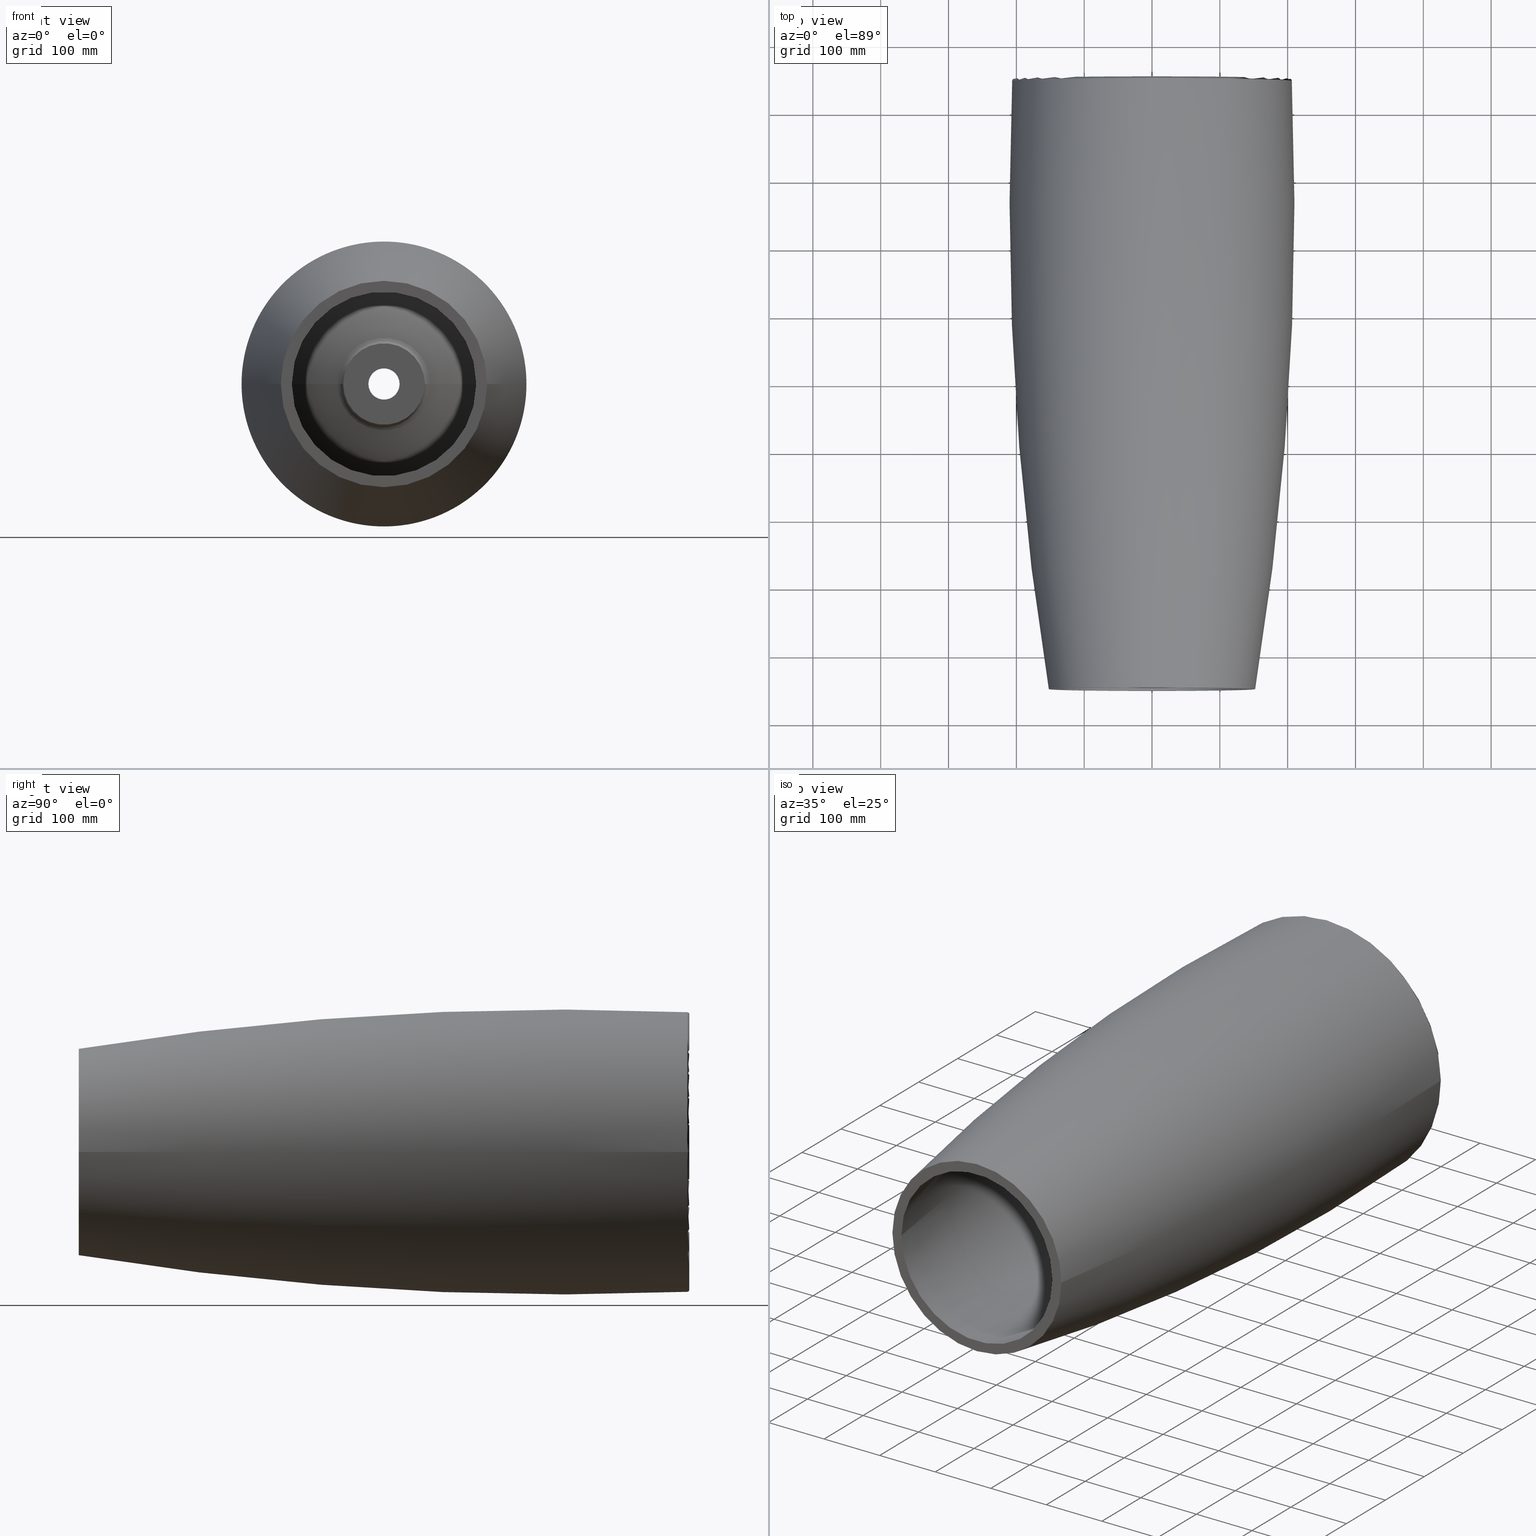
[diagram: canonical four-view strip — front | top / right | iso, engineering-drawing reading convention]
A machine part, canonical four-view strip (front | top / right | iso — engineering-drawing reading convention). The complete STEP part file that produces these views, byte-faithful:
ISO-10303-21;
HEADER;
FILE_DESCRIPTION (( 'STEP AP214' ),
    '1' );
FILE_NAME ('EOSA_ALT_D.STEP',
    '2022-02-15T11:32:47',
    ( '' ),
    ( '' ),
    'SwSTEP 2.0',
    'SolidWorks 2021',
    '' );
FILE_SCHEMA (( 'AUTOMOTIVE_DESIGN' ));
ENDSEC;

DATA;
#1 = ORIENTED_EDGE ( 'NONE', *, *, #117, .F. ) ;
#2 = EDGE_LOOP ( 'NONE', ( #618, #580, #92, #163 ) ) ;
#3 = DIRECTION ( 'NONE',  ( 1.000000000000000000, 0.000000000000000000, 1.224646799147352961E-16 ) ) ;
#4 = ORIENTED_EDGE ( 'NONE', *, *, #138, .F. ) ;
#5 = EDGE_CURVE ( 'NONE', #586, #551, #496, .T. ) ;
#6 = PRESENTATION_LAYER_ASSIGNMENT (  '', '', ( #198 ) ) ;
#7 = DIRECTION ( 'NONE',  ( -1.000000000000000000, 0.000000000000000000, 0.000000000000000000 ) ) ;
#8 = CARTESIAN_POINT ( 'NONE',  ( -70.00000000000008527, 708.1027297377410150, 0.000000000000000000 ) ) ;
#9 = ORIENTED_EDGE ( 'NONE', *, *, #57, .T. ) ;
#10 = DIRECTION ( 'NONE',  ( -1.246832498358330099E-16, 1.000000000000000000, -0.000000000000000000 ) ) ;
#11 =( LENGTH_UNIT ( ) NAMED_UNIT ( * ) SI_UNIT ( .MILLI., .METRE. ) );
#12 = ORIENTED_EDGE ( 'NONE', *, *, #204, .T. ) ;
#13 = FACE_OUTER_BOUND ( 'NONE', #319, .T. ) ;
#14 =( NAMED_UNIT ( * ) PLANE_ANGLE_UNIT ( ) SI_UNIT ( $, .RADIAN. ) );
#15 = EDGE_CURVE ( 'NONE', #197, #351, #412, .T. ) ;
#16 = AXIS2_PLACEMENT_3D ( 'NONE', #333, #531, #86 ) ;
#17 = AXIS2_PLACEMENT_3D ( 'NONE', #568, #417, #179 ) ;
#18 = CIRCLE ( 'NONE', #182, 68.24490714356687704 ) ;
#19 = ORIENTED_EDGE ( 'NONE', *, *, #492, .T. ) ;
#20 = DIRECTION ( 'NONE',  ( -1.000000000000000000, 0.000000000000000000, 0.000000000000000000 ) ) ;
#21 = DIRECTION ( 'NONE',  ( -1.246832498358330099E-16, 1.000000000000000000, -0.000000000000000000 ) ) ;
#22 = EDGE_LOOP ( 'NONE', ( #607, #458 ) ) ;
#23 = CARTESIAN_POINT ( 'NONE',  ( 22.99999999999989697, 720.0000000000000000, 2.816687638038911169E-15 ) ) ;
#24 = DIRECTION ( 'NONE',  ( -1.246832498358330099E-16, 1.000000000000000000, -0.000000000000000000 ) ) ;
#25 = ORIENTED_EDGE ( 'NONE', *, *, #160, .F. ) ;
#26 = EDGE_CURVE ( 'NONE', #48, #59, #51, .T. ) ;
#27 = DIRECTION ( 'NONE',  ( -1.000000000000000000, 0.000000000000000000, 0.000000000000000000 ) ) ;
#28 = CARTESIAN_POINT ( 'NONE',  ( -4200.202065928870979, 662.2085823914443381, -5.143764015811891808E-13 ) ) ;
#29 = ORIENTED_EDGE ( 'NONE', *, *, #385, .F. ) ;
#30 = DIRECTION ( 'NONE',  ( -1.246832498358330099E-16, 1.000000000000000000, -0.000000000000000000 ) ) ;
#31 = CARTESIAN_POINT ( 'NONE',  ( 6.234162491791648129E-15, -49.99999999999997868, 0.000000000000000000 ) ) ;
#32 = DIRECTION ( 'NONE',  ( -1.246832498358330099E-16, 1.000000000000000000, -0.000000000000000000 ) ) ;
#33 = CARTESIAN_POINT ( 'NONE',  ( -135.8988013690209016, -49.99999999999995026, 0.000000000000000000 ) ) ;
#34 = PRODUCT_DEFINITION_CONTEXT ( 'detailed design', #196, 'design' ) ;
#35 = EDGE_CURVE ( 'NONE', #226, #511, #294, .T. ) ;
#36 = DIRECTION ( 'NONE',  ( -1.246832498358330099E-16, 1.000000000000000000, 0.000000000000000000 ) ) ;
#37 = CARTESIAN_POINT ( 'NONE',  ( -8.326672684688674053E-14, 708.1027297377410150, 0.000000000000000000 ) ) ;
#38 = CIRCLE ( 'NONE', #393, 34.91753592594223221 ) ;
#39 = DIRECTION ( 'NONE',  ( -1.246832498358330099E-16, 1.000000000000000000, -0.000000000000000000 ) ) ;
#40 = AXIS2_PLACEMENT_3D ( 'NONE', #298, #249, #552 ) ;
#41 = ORIENTED_EDGE ( 'NONE', *, *, #204, .F. ) ;
#42 = TOROIDAL_SURFACE ( 'NONE', #115, -4200.202065928870979, 4410.202065928870979 ) ;
#43 = CARTESIAN_POINT ( 'NONE',  ( -9.426747841984855907E-14, 756.0556734282106390, 0.000000000000000000 ) ) ;
#44 = ORIENTED_EDGE ( 'NONE', *, *, #301, .T. ) ;
#45 = AXIS2_PLACEMENT_3D ( 'NONE', #184, #376, #167 ) ;
#46 =( NAMED_UNIT ( * ) PLANE_ANGLE_UNIT ( ) SI_UNIT ( $, .RADIAN. ) );
#47 = EDGE_CURVE ( 'NONE', #289, #392, #545, .T. ) ;
#48 = VERTEX_POINT ( 'NONE', #251 ) ;
#49 = DIRECTION ( 'NONE',  ( 0.000000000000000000, -0.000000000000000000, -1.000000000000000000 ) ) ;
#50 = ORIENTED_EDGE ( 'NONE', *, *, #306, .T. ) ;
#51 = CIRCLE ( 'NONE', #16, 174.8895041106751194 ) ;
#52 = AXIS2_PLACEMENT_3D ( 'NONE', #256, #262, #68 ) ;
#53 =( LENGTH_UNIT ( ) NAMED_UNIT ( * ) SI_UNIT ( .MILLI., .METRE. ) );
#54 = EDGE_CURVE ( 'NONE', #386, #590, #595, .T. ) ;
#55 = CARTESIAN_POINT ( 'NONE',  ( -8.977193988179976714E-14, 720.0000000000000000, 0.000000000000000000 ) ) ;
#56 = ORIENTED_EDGE ( 'NONE', *, *, #419, .T. ) ;
#57 = EDGE_CURVE ( 'NONE', #598, #338, #107, .T. ) ;
#58 = DIRECTION ( 'NONE',  ( -1.246832498358330099E-16, 1.000000000000000000, -0.000000000000000000 ) ) ;
#59 = VERTEX_POINT ( 'NONE', #353 ) ;
#60 = AXIS2_PLACEMENT_3D ( 'NONE', #577, #312, #309 ) ;
#61 = CONICAL_SURFACE ( 'NONE', #488, 34.91753592594223221, 0.8726646259971649888 ) ;
#62 = DIRECTION ( 'NONE',  ( -1.246832498358330099E-16, 1.000000000000000000, -0.000000000000000000 ) ) ;
#63 = LINE ( 'NONE', #261, #270 ) ;
#64 = ORIENTED_EDGE ( 'NONE', *, *, #345, .T. ) ;
#65 = CARTESIAN_POINT ( 'NONE',  ( -6.451553807694286215E-31, 708.0000000000000000, 0.000000000000000000 ) ) ;
#66 = ORIENTED_EDGE ( 'NONE', *, *, #409, .F. ) ;
#67 = ADVANCED_FACE ( 'NONE', ( #399 ), #346, .F. ) ;
#68 = DIRECTION ( 'NONE',  ( -1.000000000000000000, -1.246832498358330099E-16, 0.000000000000000000 ) ) ;
#69 = DIRECTION ( 'NONE',  ( 1.000000000000000000, 1.368506572352135864E-16, 0.000000000000000000 ) ) ;
#70 = ORIENTED_EDGE ( 'NONE', *, *, #334, .T. ) ;
#71 = FACE_OUTER_BOUND ( 'NONE', #339, .T. ) ;
#72 = DIRECTION ( 'NONE',  ( 1.000000000000000000, 0.000000000000000000, 1.224646799147353207E-16 ) ) ;
#73 = AXIS2_PLACEMENT_3D ( 'NONE', #464, #415, #237 ) ;
#74 = PRESENTATION_LAYER_ASSIGNMENT (  '', '', ( #395 ) ) ;
#75 = ORIENTED_EDGE ( 'NONE', *, *, #433, .T. ) ;
#76 = DIRECTION ( 'NONE',  ( -1.000000000000000000, 0.000000000000000000, 0.000000000000000000 ) ) ;
#77 = EDGE_CURVE ( 'NONE', #48, #135, #38, .T. ) ;
#78 = DIRECTION ( 'NONE',  ( 1.000000000000000000, 0.000000000000000000, 1.224646799147353454E-16 ) ) ;
#79 = FACE_BOUND ( 'NONE', #215, .T. ) ;
#80 = ORIENTED_EDGE ( 'NONE', *, *, #578, .F. ) ;
#81 = DIRECTION ( 'NONE',  ( -1.000000000000000000, -1.246832498358330099E-16, 0.000000000000000000 ) ) ;
#82 = AXIS2_PLACEMENT_3D ( 'NONE', #119, #223, #227 ) ;
#83 = TOROIDAL_SURFACE ( 'NONE', #246, 34.91753592594216826, 189.8895041106751194 ) ;
#84 = AXIS2_PLACEMENT_3D ( 'NONE', #181, #373, #137 ) ;
#85 = CARTESIAN_POINT ( 'NONE',  ( -9.187730895078067787E-14, 736.8857410418239624, 0.000000000000000000 ) ) ;
#86 = DIRECTION ( 'NONE',  ( -1.000000000000000000, 0.000000000000000000, 0.000000000000000000 ) ) ;
#87 = DIRECTION ( 'NONE',  ( -1.000000000000000000, 0.000000000000000000, 0.000000000000000000 ) ) ;
#88 = CARTESIAN_POINT ( 'NONE',  ( 34.91753592594206168, 904.8895041106750341, 4.276164860581778964E-15 ) ) ;
#89 = AXIS2_PLACEMENT_3D ( 'NONE', #341, #611, #20 ) ;
#90 = CIRCLE ( 'NONE', #451, 200.2874928100085583 ) ;
#91 = AXIS2_PLACEMENT_3D ( 'NONE', #147, #110, #400 ) ;
#92 = ORIENTED_EDGE ( 'NONE', *, *, #587, .T. ) ;
#93 = APPLICATION_PROTOCOL_DEFINITION ( 'draft international standard', 'automotive_design', 1998, #196 ) ;
#94 = AXIS2_PLACEMENT_3D ( 'NONE', #194, #388, #96 ) ;
#95 = ADVANCED_FACE ( 'NONE', ( #13 ), #104, .T. ) ;
#96 = DIRECTION ( 'NONE',  ( -1.000000000000000000, -1.246832498358330099E-16, 0.000000000000000000 ) ) ;
#97 = VERTEX_POINT ( 'NONE', #201 ) ;
#98 = ORIENTED_EDGE ( 'NONE', *, *, #419, .F. ) ;
#99 = DIRECTION ( 'NONE',  ( -1.000000000000000000, 0.000000000000000000, 0.000000000000000000 ) ) ;
#100 = SURFACE_STYLE_FILL_AREA ( #343 ) ;
#101 = APPLICATION_PROTOCOL_DEFINITION ( 'draft international standard', 'automotive_design', 1998, #572 ) ;
#102 = ORIENTED_EDGE ( 'NONE', *, *, #402, .T. ) ;
#103 = ADVANCED_FACE ( 'NONE', ( #555 ), #269, .T. ) ;
#104 = TOROIDAL_SURFACE ( 'NONE', #258, 203.1241974663284111, 3.000000000000093259 ) ;
#105 = CIRCLE ( 'NONE', #463, 22.99999999999998579 ) ;
#106 = ORIENTED_EDGE ( 'NONE', *, *, #138, .T. ) ;
#107 = LINE ( 'NONE', #213, #348 ) ;
#108 = ORIENTED_EDGE ( 'NONE', *, *, #171, .F. ) ;
#109 = CARTESIAN_POINT ( 'NONE',  ( -1.110223024625156540E-13, 846.9999999999997726, 0.000000000000000000 ) ) ;
#110 = DIRECTION ( 'NONE',  ( -1.246832498358330099E-16, 1.000000000000000000, -0.000000000000000000 ) ) ;
#111 = ORIENTED_EDGE ( 'NONE', *, *, #437, .F. ) ;
#112 = AXIS2_PLACEMENT_3D ( 'NONE', #342, #601, #453 ) ;
#113 = CIRCLE ( 'NONE', #475, 9.999999999999980460 ) ;
#114 = DIRECTION ( 'NONE',  ( -1.000000000000000000, 0.000000000000000000, 0.000000000000000000 ) ) ;
#115 = AXIS2_PLACEMENT_3D ( 'NONE', #592, #401, #337 ) ;
#116 = CARTESIAN_POINT ( 'NONE',  ( -8.827574088376975840E-14, 708.0000000000000000, 0.000000000000000000 ) ) ;
#117 = EDGE_CURVE ( 'NONE', #455, #219, #560, .T. ) ;
#118 = ORIENTED_EDGE ( 'NONE', *, *, #391, .T. ) ;
#119 = CARTESIAN_POINT ( 'NONE',  ( 69.99999999999992895, 708.1027297377410150, 8.572527594031472993E-15 ) ) ;
#120 = CYLINDRICAL_SURFACE ( 'NONE', #537, 22.99999999999999289 ) ;
#121 = CARTESIAN_POINT ( 'NONE',  ( -8.827574088376975840E-14, 708.0000000000000000, 0.000000000000000000 ) ) ;
#122 = FACE_OUTER_BOUND ( 'NONE', #193, .T. ) ;
#123 = ORIENTED_EDGE ( 'NONE', *, *, #5, .T. ) ;
#124 = ADVANCED_FACE ( 'NONE', ( #260 ), #136, .F. ) ;
#125 = DIRECTION ( 'NONE',  ( -1.224646799147353207E-16, -1.526929428187426516E-32, 1.000000000000000000 ) ) ;
#126 = AXIS2_PLACEMENT_3D ( 'NONE', #121, #514, #570 ) ;
#127 = DIRECTION ( 'NONE',  ( 1.000000000000000000, 0.000000000000000000, 1.224646799147356412E-16 ) ) ;
#128 = DIRECTION ( 'NONE',  ( 0.000000000000000000, 0.000000000000000000, 1.000000000000000000 ) ) ;
#129 = CARTESIAN_POINT ( 'NONE',  ( -68.24490714356696230, 717.9475074937544150, 0.000000000000000000 ) ) ;
#130 = DIRECTION ( 'NONE',  ( -1.246832498358330099E-16, 1.000000000000000000, -0.000000000000000000 ) ) ;
#131 = DIRECTION ( 'NONE',  ( -1.246832498358330099E-16, 1.000000000000000000, -0.000000000000000000 ) ) ;
#132 = ORIENTED_EDGE ( 'NONE', *, *, #484, .F. ) ;
#133 = ORIENTED_EDGE ( 'NONE', *, *, #257, .T. ) ;
#134 = DIRECTION ( 'NONE',  ( -1.246832498358330099E-16, 1.000000000000000000, -0.000000000000000000 ) ) ;
#135 = VERTEX_POINT ( 'NONE', #161 ) ;
#136 = TOROIDAL_SURFACE ( 'NONE', #112, 34.91753592594216826, 174.8895041106750909 ) ;
#137 = DIRECTION ( 'NONE',  ( -1.000000000000000000, 0.000000000000000000, 0.000000000000000000 ) ) ;
#138 = EDGE_CURVE ( 'NONE', #511, #172, #624, .T. ) ;
#139 = ADVANCED_FACE ( 'NONE', ( #291 ), #486, .T. ) ;
#140 = EDGE_LOOP ( 'NONE', ( #364, #243, #64, #357 ) ) ;
#141 =( NAMED_UNIT ( * ) SI_UNIT ( $, .STERADIAN. ) SOLID_ANGLE_UNIT ( ) );
#142 = AXIS2_PLACEMENT_3D ( 'NONE', #318, #515, #457 ) ;
#143 = VECTOR ( 'NONE', #530, 1000.000000000000000 ) ;
#144 = ORIENTED_EDGE ( 'NONE', *, *, #35, .F. ) ;
#145 = CARTESIAN_POINT ( 'NONE',  ( 8.880048061353697261E-14, -49.99999999999993605, 0.000000000000000000 ) ) ;
#146 = EDGE_LOOP ( 'NONE', ( #221, #9, #328, #550 ) ) ;
#147 = CARTESIAN_POINT ( 'NONE',  ( 0.000000000000000000, 662.2085823914449065, 0.000000000000000000 ) ) ;
#148 = ORIENTED_EDGE ( 'NONE', *, *, #224, .F. ) ;
#149 = CARTESIAN_POINT ( 'NONE',  ( 0.000000000000000000, 0.000000000000000000, 0.000000000000000000 ) ) ;
#150 = CARTESIAN_POINT ( 'NONE',  ( -60.00000000000007816, 708.0000000000000000, 0.000000000000000000 ) ) ;
#151 = ORIENTED_EDGE ( 'NONE', *, *, #15, .T. ) ;
#152 = AXIS2_PLACEMENT_3D ( 'NONE', #445, #302, #217 ) ;
#153 = CIRCLE ( 'NONE', #192, 23.00000000000000000 ) ;
#154 = AXIS2_PLACEMENT_3D ( 'NONE', #37, #565, #234 ) ;
#155 = DIRECTION ( 'NONE',  ( 1.000000000000000000, 1.021185445935654007E-16, 0.000000000000000000 ) ) ;
#156 = ORIENTED_EDGE ( 'NONE', *, *, #554, .F. ) ;
#157 = DIRECTION ( 'NONE',  ( -1.246832498358330099E-16, 1.000000000000000000, -0.000000000000000000 ) ) ;
#158 = DIRECTION ( 'NONE',  ( -1.000000000000000000, 0.000000000000000000, 0.000000000000000000 ) ) ;
#159 = ORIENTED_EDGE ( 'NONE', *, *, #340, .F. ) ;
#160 = EDGE_CURVE ( 'NONE', #392, #48, #165, .T. ) ;
#161 = CARTESIAN_POINT ( 'NONE',  ( 34.91753592594214695, 730.0000000000001137, 4.276164860581787642E-15 ) ) ;
#162 = DIRECTION ( 'NONE',  ( -1.246832498358330099E-16, 1.000000000000000000, -0.000000000000000000 ) ) ;
#163 = ORIENTED_EDGE ( 'NONE', *, *, #301, .F. ) ;
#164 = AXIS2_PLACEMENT_3D ( 'NONE', #371, #575, #558 ) ;
#165 = LINE ( 'NONE', #472, #320 ) ;
#166 = AXIS2_PLACEMENT_3D ( 'NONE', #225, #313, #576 ) ;
#167 = DIRECTION ( 'NONE',  ( -1.000000000000000000, -1.246832498358330099E-16, 0.000000000000000000 ) ) ;
#168 = ORIENTED_EDGE ( 'NONE', *, *, #224, .T. ) ;
#169 = DIRECTION ( 'NONE',  ( 1.000000000000000000, 0.000000000000000000, 1.224646799147352961E-16 ) ) ;
#170 = CARTESIAN_POINT ( 'NONE',  ( 0.000000000000000000, 0.000000000000000000, 0.000000000000000000 ) ) ;
#171 = EDGE_CURVE ( 'NONE', #598, #378, #404, .T. ) ;
#172 = VERTEX_POINT ( 'NONE', #567 ) ;
#173 = PRODUCT_DEFINITION_SHAPE ( 'NONE', 'NONE',  #619 ) ;
#174 = CARTESIAN_POINT ( 'NONE',  ( 203.1241974663282974, 846.9999999999997726, 2.487553982565139829E-14 ) ) ;
#175 = DIRECTION ( 'NONE',  ( -1.246832498358330099E-16, 1.000000000000000000, -0.000000000000000000 ) ) ;
#176 = DIRECTION ( 'NONE',  ( -1.000000000000000000, 0.000000000000000000, 0.000000000000000000 ) ) ;
#177 = AXIS2_PLACEMENT_3D ( 'NONE', #65, #36, #317 ) ;
#178 = CIRCLE ( 'NONE', #574, 59.99999999999999289 ) ;
#179 = DIRECTION ( 'NONE',  ( -1.000000000000000000, 0.000000000000000000, 0.000000000000000000 ) ) ;
#180 = AXIS2_PLACEMENT_3D ( 'NONE', #620, #377, #186 ) ;
#181 = CARTESIAN_POINT ( 'NONE',  ( -168.3690150244833887, 736.4608791583127640, 0.000000000000000000 ) ) ;
#182 = AXIS2_PLACEMENT_3D ( 'NONE', #616, #533, #87 ) ;
#183 = ORIENTED_EDGE ( 'NONE', *, *, #508, .T. ) ;
#184 = CARTESIAN_POINT ( 'NONE',  ( 0.000000000000000000, 662.2085823914449065, 0.000000000000000000 ) ) ;
#185 = ORIENTED_EDGE ( 'NONE', *, *, #599, .T. ) ;
#186 = DIRECTION ( 'NONE',  ( -1.000000000000000000, 0.000000000000000000, 0.000000000000000000 ) ) ;
#187 = EDGE_CURVE ( 'NONE', #351, #551, #336, .T. ) ;
#188 = PRODUCT ( 'EOSA_ALT_D', 'EOSA_ALT_D', '', ( #427 ) ) ;
#189 = CARTESIAN_POINT ( 'NONE',  ( 206.1215591921063606, 847.1257882539825914, 2.524261076998749186E-14 ) ) ;
#190 = CARTESIAN_POINT ( 'NONE',  ( 8.880048061353697261E-14, -49.99999999999993605, 0.000000000000000000 ) ) ;
#191 = CARTESIAN_POINT ( 'NONE',  ( 59.99999999999990763, 708.0000000000000000, 7.347880794884118356E-15 ) ) ;
#192 = AXIS2_PLACEMENT_3D ( 'NONE', #255, #450, #444 ) ;
#193 = EDGE_LOOP ( 'NONE', ( #468, #1, #56, #102 ) ) ;
#194 = CARTESIAN_POINT ( 'NONE',  ( 0.000000000000000000, 662.2085823914449065, 0.000000000000000000 ) ) ;
#195 = ADVANCED_FACE ( 'NONE', ( #277, #79 ), #459, .F. ) ;
#196 = APPLICATION_CONTEXT ( 'automotive_design' ) ;
#197 = VERTEX_POINT ( 'NONE', #232 ) ;
#198 = STYLED_ITEM ( 'NONE', ( #206 ), #389 ) ;
#199 = TOROIDAL_SURFACE ( 'NONE', #45, -4200.202065928870979, 4410.202065928870979 ) ;
#200 = ORIENTED_EDGE ( 'NONE', *, *, #216, .F. ) ;
#201 = CARTESIAN_POINT ( 'NONE',  ( 68.24490714356679177, 717.9475074937544150, 1.353775573317351336E-14 ) ) ;
#202 = FACE_OUTER_BOUND ( 'NONE', #480, .T. ) ;
#203 = EDGE_LOOP ( 'NONE', ( #111, #108 ) ) ;
#204 = EDGE_CURVE ( 'NONE', #135, #48, #573, .T. ) ;
#205 = DIRECTION ( 'NONE',  ( -1.246832498358330099E-16, 1.000000000000000000, -0.000000000000000000 ) ) ;
#206 = PRESENTATION_STYLE_ASSIGNMENT (( #356 ) ) ;
#207 = EDGE_LOOP ( 'NONE', ( #50, #19, #159, #513 ) ) ;
#208 = CYLINDRICAL_SURFACE ( 'NONE', #40, 59.99999999999998579 ) ;
#209 = ORIENTED_EDGE ( 'NONE', *, *, #187, .F. ) ;
#210 = AXIS2_PLACEMENT_3D ( 'NONE', #266, #523, #76 ) ;
#211 = VECTOR ( 'NONE', #602, 1000.000000000000000 ) ;
#212 = AXIS2_PLACEMENT_3D ( 'NONE', #174, #418, #127 ) ;
#213 = CARTESIAN_POINT ( 'NONE',  ( 59.99999999999998579, 7.480994990149979017E-15, 7.347880794884116778E-15 ) ) ;
#214 = FACE_OUTER_BOUND ( 'NONE', #146, .T. ) ;
#215 = EDGE_LOOP ( 'NONE', ( #304, #327 ) ) ;
#216 = EDGE_CURVE ( 'NONE', #197, #586, #283, .T. ) ;
#217 = DIRECTION ( 'NONE',  ( -1.000000000000000000, -1.246832498358330099E-16, 0.000000000000000000 ) ) ;
#218 = LINE ( 'NONE', #407, #211 ) ;
#219 = VERTEX_POINT ( 'NONE', #264 ) ;
#220 = DIRECTION ( 'NONE',  ( 0.7660444431189781245, 0.6427876096865391409, 9.381338752702732014E-17 ) ) ;
#221 = ORIENTED_EDGE ( 'NONE', *, *, #437, .T. ) ;
#222 =( GEOMETRIC_REPRESENTATION_CONTEXT ( 3 ) GLOBAL_UNCERTAINTY_ASSIGNED_CONTEXT ( ( #482 ) ) GLOBAL_UNIT_ASSIGNED_CONTEXT ( ( #556, #14, #252 ) ) REPRESENTATION_CONTEXT ( 'NONE', 'WORKASPACE' ) );
#223 = DIRECTION ( 'NONE',  ( -1.224646799147353207E-16, -1.526929428187426516E-32, 1.000000000000000000 ) ) ;
#224 = EDGE_CURVE ( 'NONE', #289, #135, #322, .T. ) ;
#225 = CARTESIAN_POINT ( 'NONE',  ( -8.326672684688674053E-14, 708.1027297377410150, 0.000000000000000000 ) ) ;
#226 = VERTEX_POINT ( 'NONE', #411 ) ;
#227 = DIRECTION ( 'NONE',  ( 1.000000000000000000, 0.000000000000000000, 1.224646799147354440E-16 ) ) ;
#228 = DIRECTION ( 'NONE',  ( 1.246832498358330099E-16, -1.000000000000000000, 0.000000000000000000 ) ) ;
#229 = ORIENTED_EDGE ( 'NONE', *, *, #535, .F. ) ;
#230 = CARTESIAN_POINT ( 'NONE',  ( -1.110223024625156540E-13, 904.8895041106750341, 0.000000000000000000 ) ) ;
#231 = AXIS2_PLACEMENT_3D ( 'NONE', #190, #379, #582 ) ;
#232 = CARTESIAN_POINT ( 'NONE',  ( 152.1123985246398433, -49.99999999999991473, 2.193550348318507100E-14 ) ) ;
#233 = AXIS2_PLACEMENT_3D ( 'NONE', #28, #473, #78 ) ;
#234 = DIRECTION ( 'NONE',  ( -1.000000000000000000, -1.246832498358330099E-16, 0.000000000000000000 ) ) ;
#235 = ORIENTED_EDGE ( 'NONE', *, *, #466, .T. ) ;
#236 = ADVANCED_FACE ( 'NONE', ( #71 ), #507, .F. ) ;
#237 = DIRECTION ( 'NONE',  ( -1.000000000000000000, 0.000000000000000000, 0.000000000000000000 ) ) ;
#238 = DIRECTION ( 'NONE',  ( -1.246832498358330099E-16, 1.000000000000000000, -0.000000000000000000 ) ) ;
#239 = PRODUCT_RELATED_PRODUCT_CATEGORY ( 'part', '', ( #188 ) ) ;
#240 = CARTESIAN_POINT ( 'NONE',  ( -203.1241974663284964, 846.9999999999997726, 0.000000000000000000 ) ) ;
#241 = EDGE_CURVE ( 'NONE', #374, #59, #90, .T. ) ;
#242 = CIRCLE ( 'NONE', #439, 59.99999999999998579 ) ;
#243 = ORIENTED_EDGE ( 'NONE', *, *, #535, .T. ) ;
#244 = DIRECTION ( 'NONE',  ( -1.000000000000000000, 0.000000000000000000, 0.000000000000000000 ) ) ;
#245 = AXIS2_PLACEMENT_3D ( 'NONE', #145, #175, #483 ) ;
#246 = AXIS2_PLACEMENT_3D ( 'NONE', #230, #420, #612 ) ;
#247 = EDGE_LOOP ( 'NONE', ( #501, #557 ) ) ;
#248 = EDGE_CURVE ( 'NONE', #97, #338, #613, .T. ) ;
#249 = DIRECTION ( 'NONE',  ( -1.246832498358330099E-16, 1.000000000000000000, -0.000000000000000000 ) ) ;
#250 = EDGE_LOOP ( 'NONE', ( #144, #358, #621, #4 ) ) ;
#251 = CARTESIAN_POINT ( 'NONE',  ( -34.91753592594231748, 730.0000000000001137, 0.000000000000000000 ) ) ;
#252 =( NAMED_UNIT ( * ) SI_UNIT ( $, .STERADIAN. ) SOLID_ANGLE_UNIT ( ) );
#253 = ORIENTED_EDGE ( 'NONE', *, *, #402, .F. ) ;
#254 = CARTESIAN_POINT ( 'NONE',  ( -9.101877238015810986E-14, 730.0000000000001137, 0.000000000000000000 ) ) ;
#255 = CARTESIAN_POINT ( 'NONE',  ( -8.827574088376975840E-14, 708.0000000000000000, 0.000000000000000000 ) ) ;
#256 = CARTESIAN_POINT ( 'NONE',  ( 0.000000000000000000, 0.000000000000000000, 0.000000000000000000 ) ) ;
#257 = EDGE_CURVE ( 'NONE', #622, #386, #349, .T. ) ;
#258 = AXIS2_PLACEMENT_3D ( 'NONE', #109, #559, #503 ) ;
#259 = AXIS2_PLACEMENT_3D ( 'NONE', #88, #293, #3 ) ;
#260 = FACE_OUTER_BOUND ( 'NONE', #493, .T. ) ;
#261 = CARTESIAN_POINT ( 'NONE',  ( -22.99999999999999289, -2.867714746224158439E-15, 0.000000000000000000 ) ) ;
#262 = DIRECTION ( 'NONE',  ( -1.246832498358330099E-16, 1.000000000000000000, -0.000000000000000000 ) ) ;
#263 = ORIENTED_EDGE ( 'NONE', *, *, #241, .F. ) ;
#264 = CARTESIAN_POINT ( 'NONE',  ( 22.99999999999991118, 708.0000000000000000, 2.816687638038912746E-15 ) ) ;
#265 = EDGE_LOOP ( 'NONE', ( #542, #156, #287, #569 ) ) ;
#266 = CARTESIAN_POINT ( 'NONE',  ( 4200.202065928870979, 662.2085823914454750, 0.000000000000000000 ) ) ;
#267 = CARTESIAN_POINT ( 'NONE',  ( -60.00000000000007105, 708.1027297377410150, 0.000000000000000000 ) ) ;
#268 = ORIENTED_EDGE ( 'NONE', *, *, #54, .T. ) ;
#269 = TOROIDAL_SURFACE ( 'NONE', #152, 34.91753592594216826, 189.8895041106751194 ) ;
#270 = VECTOR ( 'NONE', #21, 1000.000000000000000 ) ;
#271 = PRODUCT_DEFINITION_FORMATION_WITH_SPECIFIED_SOURCE ( 'ANY', '', #188, .NOT_KNOWN. ) ;
#272 = FACE_BOUND ( 'NONE', #22, .T. ) ;
#273 = ORIENTED_EDGE ( 'NONE', *, *, #47, .T. ) ;
#274 = FACE_OUTER_BOUND ( 'NONE', #485, .T. ) ;
#275 = UNCERTAINTY_MEASURE_WITH_UNIT (LENGTH_MEASURE( 1.000000000000000082E-05 ), #53, 'distance_accuracy_value', 'NONE');
#276 = DIRECTION ( 'NONE',  ( -1.000000000000000000, -1.246832498358330099E-16, 0.000000000000000000 ) ) ;
#277 = FACE_OUTER_BOUND ( 'NONE', #203, .T. ) ;
#278 = DIRECTION ( 'NONE',  ( -1.000000000000000000, -1.246832498358330099E-16, 0.000000000000000000 ) ) ;
#279 = CARTESIAN_POINT ( 'NONE',  ( -8.326672684688674053E-14, 736.4608791583127640, 0.000000000000000000 ) ) ;
#280 = ADVANCED_FACE ( 'NONE', ( #274 ), #547, .F. ) ;
#281 = ORIENTED_EDGE ( 'NONE', *, *, #77, .T. ) ;
#282 = CARTESIAN_POINT ( 'NONE',  ( 8.880048061353697261E-14, -49.99999999999993605, 0.000000000000000000 ) ) ;
#283 = CIRCLE ( 'NONE', #60, 4410.202065928870979 ) ;
#284 = TOROIDAL_SURFACE ( 'NONE', #625, 34.91753592594216826, 174.8895041106750909 ) ;
#285 = DIRECTION ( 'NONE',  ( 0.000000000000000000, -0.000000000000000000, -1.000000000000000000 ) ) ;
#286 = ADVANCED_FACE ( 'NONE', ( #522 ), #83, .T. ) ;
#287 = ORIENTED_EDGE ( 'NONE', *, *, #578, .T. ) ;
#288 = CIRCLE ( 'NONE', #17, 200.2874928100085583 ) ;
#289 = VERTEX_POINT ( 'NONE', #23 ) ;
#290 = ORIENTED_EDGE ( 'NONE', *, *, #385, .T. ) ;
#291 = FACE_OUTER_BOUND ( 'NONE', #516, .T. ) ;
#292 = FILL_AREA_STYLE_COLOUR ( '', #321 ) ;
#293 = DIRECTION ( 'NONE',  ( -1.224646799147353207E-16, -1.526929428187426516E-32, 1.000000000000000000 ) ) ;
#294 = CIRCLE ( 'NONE', #245, 135.8988013690209868 ) ;
#295 = CIRCLE ( 'NONE', #164, 68.24490714356687704 ) ;
#296 = CARTESIAN_POINT ( 'NONE',  ( -1.110223024625156540E-13, 904.8895041106750341, 0.000000000000000000 ) ) ;
#297 =( GEOMETRIC_REPRESENTATION_CONTEXT ( 3 ) GLOBAL_UNCERTAINTY_ASSIGNED_CONTEXT ( ( #589 ) ) GLOBAL_UNIT_ASSIGNED_CONTEXT ( ( #11, #46, #141 ) ) REPRESENTATION_CONTEXT ( 'NONE', 'WORKASPACE' ) );
#298 = CARTESIAN_POINT ( 'NONE',  ( 0.000000000000000000, 0.000000000000000000, 0.000000000000000000 ) ) ;
#299 = ORIENTED_EDGE ( 'NONE', *, *, #241, .T. ) ;
#300 = EDGE_LOOP ( 'NONE', ( #132, #603, #106, #566 ) ) ;
#301 = EDGE_CURVE ( 'NONE', #338, #491, #242, .T. ) ;
#302 = DIRECTION ( 'NONE',  ( -1.246832498358330099E-16, 1.000000000000000000, -0.000000000000000000 ) ) ;
#303 = EDGE_LOOP ( 'NONE', ( #229, #529, #44, #29 ) ) ;
#304 = ORIENTED_EDGE ( 'NONE', *, *, #117, .T. ) ;
#305 = CARTESIAN_POINT ( 'NONE',  ( -8.326672684688674053E-14, 736.4608791583127640, 0.000000000000000000 ) ) ;
#306 = EDGE_CURVE ( 'NONE', #314, #97, #295, .T. ) ;
#307 = EDGE_LOOP ( 'NONE', ( #41, #413, #299, #311 ) ) ;
#308 = COLOUR_RGB ( '',1.000000000000000000, 1.000000000000000000, 1.000000000000000000 ) ;
#309 = DIRECTION ( 'NONE',  ( 1.000000000000000000, 0.000000000000000000, 1.224646799147353454E-16 ) ) ;
#310 = DIRECTION ( 'NONE',  ( -1.246832498358330099E-16, 1.000000000000000000, -0.000000000000000000 ) ) ;
#311 = ORIENTED_EDGE ( 'NONE', *, *, #26, .F. ) ;
#312 = DIRECTION ( 'NONE',  ( -1.224646799147353207E-16, -1.526929428187426516E-32, 1.000000000000000000 ) ) ;
#313 = DIRECTION ( 'NONE',  ( -1.246832498358330099E-16, 1.000000000000000000, -0.000000000000000000 ) ) ;
#314 = VERTEX_POINT ( 'NONE', #129 ) ;
#315 = ADVANCED_FACE ( 'NONE', ( #324 ), #284, .F. ) ;
#316 = DIRECTION ( 'NONE',  ( -1.246832498358330099E-16, 1.000000000000000000, -0.000000000000000000 ) ) ;
#317 = DIRECTION ( 'NONE',  ( -1.000000000000000000, -1.246832498358330099E-16, 0.000000000000000000 ) ) ;
#318 = CARTESIAN_POINT ( 'NONE',  ( -9.187730895078067787E-14, 736.8857410418239624, 0.000000000000000000 ) ) ;
#319 = EDGE_LOOP ( 'NONE', ( #532, #123, #185, #263 ) ) ;
#320 = VECTOR ( 'NONE', #325, 1000.000000000000000 ) ;
#321 = COLOUR_RGB ( '',1.000000000000000000, 1.000000000000000000, 1.000000000000000000 ) ;
#322 = LINE ( 'NONE', #456, #422 ) ;
#323 = AXIS2_PLACEMENT_3D ( 'NONE', #31, #228, #329 ) ;
#324 = FACE_OUTER_BOUND ( 'NONE', #307, .T. ) ;
#325 = DIRECTION ( 'NONE',  ( -0.7660444431189782355, 0.6427876096865390299, 0.000000000000000000 ) ) ;
#326 = ADVANCED_FACE ( 'NONE', ( #398 ), #479, .T. ) ;
#327 = ORIENTED_EDGE ( 'NONE', *, *, #409, .T. ) ;
#328 = ORIENTED_EDGE ( 'NONE', *, *, #334, .F. ) ;
#329 = DIRECTION ( 'NONE',  ( 1.000000000000000000, 1.246832498358330099E-16, 0.000000000000000000 ) ) ;
#330 = FACE_OUTER_BOUND ( 'NONE', #250, .T. ) ;
#331 = CIRCLE ( 'NONE', #614, 135.8988013690209868 ) ;
#332 = TOROIDAL_SURFACE ( 'NONE', #94, -4200.202065928870979, 4394.202065928870979 ) ;
#333 = CARTESIAN_POINT ( 'NONE',  ( -34.91753592594228195, 904.8895041106750341, 0.000000000000000000 ) ) ;
#334 = EDGE_CURVE ( 'NONE', #491, #338, #394, .T. ) ;
#335 = DIRECTION ( 'NONE',  ( -1.000000000000000000, 0.000000000000000000, 0.000000000000000000 ) ) ;
#336 = CIRCLE ( 'NONE', #210, 4410.202065928870979 ) ;
#337 = DIRECTION ( 'NONE',  ( -1.000000000000000000, -1.246832498358330099E-16, 0.000000000000000000 ) ) ;
#338 = VERTEX_POINT ( 'NONE', #579 ) ;
#339 = EDGE_LOOP ( 'NONE', ( #148, #253, #553, #281 ) ) ;
#340 = EDGE_CURVE ( 'NONE', #590, #386, #432, .T. ) ;
#341 = CARTESIAN_POINT ( 'NONE',  ( -8.977193988179976714E-14, 720.0000000000000000, 0.000000000000000000 ) ) ;
#342 = CARTESIAN_POINT ( 'NONE',  ( -1.110223024625156540E-13, 904.8895041106750341, 0.000000000000000000 ) ) ;
#343 = FILL_AREA_STYLE ('',( #292 ) ) ;
#344 = SURFACE_SIDE_STYLE ('',( #549 ) ) ;
#345 = EDGE_CURVE ( 'NONE', #314, #590, #606, .T. ) ;
#346 = CYLINDRICAL_SURFACE ( 'NONE', #431, 22.99999999999999289 ) ;
#347 = FILL_AREA_STYLE ('',( #397 ) ) ;
#348 = VECTOR ( 'NONE', #205, 1000.000000000000000 ) ;
#349 = CIRCLE ( 'NONE', #498, 25.00000000000032685 ) ;
#350 = AXIS2_PLACEMENT_3D ( 'NONE', #240, #285, #335 ) ;
#351 = VERTEX_POINT ( 'NONE', #477 ) ;
#352 = ADVANCED_FACE ( 'NONE', ( #330 ), #414, .F. ) ;
#353 = CARTESIAN_POINT ( 'NONE',  ( -200.2874928100086720, 847.9762718334632154, 0.000000000000000000 ) ) ;
#354 = CARTESIAN_POINT ( 'NONE',  ( 152.8434220399825847, 756.0556734282106390, 2.119917656975765769E-14 ) ) ;
#355 = ORIENTED_EDGE ( 'NONE', *, *, #306, .F. ) ;
#356 = SURFACE_STYLE_USAGE ( .BOTH. , #406 ) ;
#357 = ORIENTED_EDGE ( 'NONE', *, *, #54, .F. ) ;
#358 = ORIENTED_EDGE ( 'NONE', *, *, #484, .T. ) ;
#359 = AXIS2_PLACEMENT_3D ( 'NONE', #305, #316, #367 ) ;
#360 = MECHANICAL_DESIGN_GEOMETRIC_PRESENTATION_REPRESENTATION (  '', ( #395 ), #528 ) ;
#361 = CARTESIAN_POINT ( 'NONE',  ( -1.057284373558699393E-13, 847.9762718334632154, 0.000000000000000000 ) ) ;
#362 = CARTESIAN_POINT ( 'NONE',  ( -23.00000000000008527, 708.0000000000000000, 0.000000000000000000 ) ) ;
#363 = EDGE_CURVE ( 'NONE', #511, #226, #331, .T. ) ;
#364 = ORIENTED_EDGE ( 'NONE', *, *, #492, .F. ) ;
#365 = DIRECTION ( 'NONE',  ( -1.246832498358330099E-16, 1.000000000000000000, -0.000000000000000000 ) ) ;
#366 = ORIENTED_EDGE ( 'NONE', *, *, #77, .F. ) ;
#367 = DIRECTION ( 'NONE',  ( -1.000000000000000000, -1.246832498358330099E-16, 0.000000000000000000 ) ) ;
#368 = FACE_OUTER_BOUND ( 'NONE', #520, .T. ) ;
#369 = ADVANCED_FACE ( 'NONE', ( #214 ), #208, .T. ) ;
#370 = AXIS2_PLACEMENT_3D ( 'NONE', #517, #24, #375 ) ;
#371 = CARTESIAN_POINT ( 'NONE',  ( -8.951602844585736985E-14, 717.9475074937544150, 0.000000000000000000 ) ) ;
#372 = CIRCLE ( 'NONE', #536, 152.1123985246397581 ) ;
#373 = DIRECTION ( 'NONE',  ( 0.000000000000000000, -0.000000000000000000, -1.000000000000000000 ) ) ;
#374 = VERTEX_POINT ( 'NONE', #594 ) ;
#375 = DIRECTION ( 'NONE',  ( -1.000000000000000000, 0.000000000000000000, 0.000000000000000000 ) ) ;
#376 = DIRECTION ( 'NONE',  ( -1.246832498358330099E-16, 1.000000000000000000, -0.000000000000000000 ) ) ;
#377 = DIRECTION ( 'NONE',  ( 0.000000000000000000, -0.000000000000000000, -1.000000000000000000 ) ) ;
#378 = VERTEX_POINT ( 'NONE', #150 ) ;
#379 = DIRECTION ( 'NONE',  ( -1.246832498358330099E-16, 1.000000000000000000, -0.000000000000000000 ) ) ;
#380 = AXIS2_PLACEMENT_3D ( 'NONE', #443, #403, #7 ) ;
#381 = ORIENTED_EDGE ( 'NONE', *, *, #248, .F. ) ;
#382 = CIRCLE ( 'NONE', #584, 206.1215591921062753 ) ;
#383 = TOROIDAL_SURFACE ( 'NONE', #441, 168.3690150244833035, 25.00000000000033040 ) ;
#384 = CARTESIAN_POINT ( 'NONE',  ( -152.8434220399827552, 756.0556734282106390, 0.000000000000000000 ) ) ;
#385 = EDGE_CURVE ( 'NONE', #314, #491, #113, .T. ) ;
#386 = VERTEX_POINT ( 'NONE', #354 ) ;
#387 = FACE_OUTER_BOUND ( 'NONE', #265, .T. ) ;
#388 = DIRECTION ( 'NONE',  ( -1.246832498358330099E-16, 1.000000000000000000, -0.000000000000000000 ) ) ;
#389 = MANIFOLD_SOLID_BREP ( 'Verl�ngerung auf 900mm', #583 ) ;
#390 = ORIENTED_EDGE ( 'NONE', *, *, #47, .F. ) ;
#391 = EDGE_CURVE ( 'NONE', #551, #586, #382, .T. ) ;
#392 = VERTEX_POINT ( 'NONE', #499 ) ;
#393 = AXIS2_PLACEMENT_3D ( 'NONE', #254, #157, #546 ) ;
#394 = CIRCLE ( 'NONE', #73, 59.99999999999998579 ) ;
#395 = STYLED_ITEM ( 'NONE', ( #490 ), #469 ) ;
#396 = DIRECTION ( 'NONE',  ( -1.246832498358330099E-16, 1.000000000000000000, -0.000000000000000000 ) ) ;
#397 = FILL_AREA_STYLE_COLOUR ( '', #308 ) ;
#398 = FACE_OUTER_BOUND ( 'NONE', #2, .T. ) ;
#399 = FACE_OUTER_BOUND ( 'NONE', #495, .T. ) ;
#400 = DIRECTION ( 'NONE',  ( -1.000000000000000000, -1.246832498358330099E-16, 0.000000000000000000 ) ) ;
#401 = DIRECTION ( 'NONE',  ( -1.246832498358330099E-16, 1.000000000000000000, -0.000000000000000000 ) ) ;
#402 = EDGE_CURVE ( 'NONE', #392, #289, #105, .T. ) ;
#403 = DIRECTION ( 'NONE',  ( -1.246832498358330099E-16, 1.000000000000000000, -0.000000000000000000 ) ) ;
#404 = CIRCLE ( 'NONE', #126, 59.99999999999999289 ) ;
#405 = ORIENTED_EDGE ( 'NONE', *, *, #623, .F. ) ;
#406 = SURFACE_SIDE_STYLE ('',( #100 ) ) ;
#407 = CARTESIAN_POINT ( 'NONE',  ( 22.99999999999999289, 2.867714746224158439E-15, 2.816687638038911563E-15 ) ) ;
#408 = ORIENTED_EDGE ( 'NONE', *, *, #466, .F. ) ;
#409 = EDGE_CURVE ( 'NONE', #219, #455, #153, .T. ) ;
#410 = CARTESIAN_POINT ( 'NONE',  ( -8.828854956132610451E-14, 708.1027297377410150, 0.000000000000000000 ) ) ;
#411 = CARTESIAN_POINT ( 'NONE',  ( 135.8988013690210721, -49.99999999999992184, 2.016161779638470888E-14 ) ) ;
#412 = CIRCLE ( 'NONE', #231, 152.1123985246397581 ) ;
#413 = ORIENTED_EDGE ( 'NONE', *, *, #623, .T. ) ;
#414 = TOROIDAL_SURFACE ( 'NONE', #91, -4200.202065928870979, 4394.202065928870979 ) ;
#415 = DIRECTION ( 'NONE',  ( -1.246832498358330099E-16, 1.000000000000000000, -0.000000000000000000 ) ) ;
#416 = CARTESIAN_POINT ( 'NONE',  ( 168.3690150244832182, 736.4608791583127640, 2.061925753253261364E-14 ) ) ;
#417 = DIRECTION ( 'NONE',  ( -1.246832498358330099E-16, 1.000000000000000000, -0.000000000000000000 ) ) ;
#418 = DIRECTION ( 'NONE',  ( -1.224646799147353207E-16, -1.526929428187426516E-32, 1.000000000000000000 ) ) ;
#419 = EDGE_CURVE ( 'NONE', #455, #392, #63, .T. ) ;
#420 = DIRECTION ( 'NONE',  ( -1.246832498358330099E-16, 1.000000000000000000, -0.000000000000000000 ) ) ;
#421 = CARTESIAN_POINT ( 'NONE',  ( -206.1215591921065879, 847.1257882539825914, 0.000000000000000000 ) ) ;
#422 = VECTOR ( 'NONE', #220, 1000.000000000000227 ) ;
#423 = CIRCLE ( 'NONE', #142, 193.3654046113807681 ) ;
#424 = CIRCLE ( 'NONE', #84, 25.00000000000032685 ) ;
#425 = DIRECTION ( 'NONE',  ( -1.000000000000000000, -1.246832498358330099E-16, 0.000000000000000000 ) ) ;
#426 = FACE_OUTER_BOUND ( 'NONE', #628, .T. ) ;
#427 = PRODUCT_CONTEXT ( 'NONE', #572, 'mechanical' ) ;
#428 = DIRECTION ( 'NONE',  ( -1.246832498358330099E-16, 1.000000000000000000, -0.000000000000000000 ) ) ;
#429 = DIRECTION ( 'NONE',  ( -1.000000000000000000, 0.000000000000000000, 0.000000000000000000 ) ) ;
#430 = DIRECTION ( 'NONE',  ( -1.000000000000000000, 0.000000000000000000, 0.000000000000000000 ) ) ;
#431 = AXIS2_PLACEMENT_3D ( 'NONE', #149, #497, #448 ) ;
#432 = CIRCLE ( 'NONE', #596, 152.8434220399826700 ) ;
#433 = EDGE_CURVE ( 'NONE', #219, #289, #218, .T. ) ;
#434 = CIRCLE ( 'NONE', #585, 189.8895041106751194 ) ;
#435 = CARTESIAN_POINT ( 'NONE',  ( 193.3654046113807681, 736.8857410418239624, 2.368043238231606492E-14 ) ) ;
#436 = ADVANCED_FACE ( 'NONE', ( #202 ), #61, .F. ) ;
#437 = EDGE_CURVE ( 'NONE', #378, #598, #178, .T. ) ;
#438 = ORIENTED_EDGE ( 'NONE', *, *, #391, .F. ) ;
#439 = AXIS2_PLACEMENT_3D ( 'NONE', #410, #32, #176 ) ;
#440 = CARTESIAN_POINT ( 'NONE',  ( 8.880048061353697261E-14, -49.99999999999993605, 0.000000000000000000 ) ) ;
#441 = AXIS2_PLACEMENT_3D ( 'NONE', #279, #428, #276 ) ;
#442 = EDGE_CURVE ( 'NONE', #351, #197, #372, .T. ) ;
#443 = CARTESIAN_POINT ( 'NONE',  ( -9.426747841984855907E-14, 756.0556734282106390, 0.000000000000000000 ) ) ;
#444 = DIRECTION ( 'NONE',  ( -1.000000000000000000, 0.000000000000000000, 0.000000000000000000 ) ) ;
#445 = CARTESIAN_POINT ( 'NONE',  ( -1.110223024625156540E-13, 904.8895041106750341, 0.000000000000000000 ) ) ;
#446 = DIRECTION ( 'NONE',  ( -1.000000000000000000, 0.000000000000000000, 0.000000000000000000 ) ) ;
#447 =( NAMED_UNIT ( * ) SI_UNIT ( $, .STERADIAN. ) SOLID_ANGLE_UNIT ( ) );
#448 = DIRECTION ( 'NONE',  ( -1.000000000000000000, -1.246832498358330099E-16, 0.000000000000000000 ) ) ;
#449 = AXIS2_PLACEMENT_3D ( 'NONE', #494, #49, #99 ) ;
#450 = DIRECTION ( 'NONE',  ( -1.246832498358330099E-16, 1.000000000000000000, -0.000000000000000000 ) ) ;
#451 = AXIS2_PLACEMENT_3D ( 'NONE', #361, #30, #564 ) ;
#452 = CIRCLE ( 'NONE', #259, 174.8895041106751194 ) ;
#453 = DIRECTION ( 'NONE',  ( -1.000000000000000000, -1.246832498358330099E-16, 0.000000000000000000 ) ) ;
#454 = CARTESIAN_POINT ( 'NONE',  ( -1.056223962992482816E-13, 847.1257882539825914, 0.000000000000000000 ) ) ;
#455 = VERTEX_POINT ( 'NONE', #362 ) ;
#456 = CARTESIAN_POINT ( 'NONE',  ( 34.91753592594213984, 730.0000000000001137, 4.276164860581786853E-15 ) ) ;
#457 = DIRECTION ( 'NONE',  ( -1.000000000000000000, 0.000000000000000000, 0.000000000000000000 ) ) ;
#458 = ORIENTED_EDGE ( 'NONE', *, *, #35, .T. ) ;
#459 = PLANE ( 'NONE',  #177 ) ;
#460 = CARTESIAN_POINT ( 'NONE',  ( 34.91753592594206168, 904.8895041106750341, 4.276164860581778964E-15 ) ) ;
#461 = AXIS2_PLACEMENT_3D ( 'NONE', #608, #130, #425 ) ;
#462 = ORIENTED_EDGE ( 'NONE', *, *, #26, .T. ) ;
#463 = AXIS2_PLACEMENT_3D ( 'NONE', #55, #58, #158 ) ;
#464 = CARTESIAN_POINT ( 'NONE',  ( -8.828854956132610451E-14, 708.1027297377410150, 0.000000000000000000 ) ) ;
#465 = CARTESIAN_POINT ( 'NONE',  ( -9.101877238015810986E-14, 730.0000000000001137, 0.000000000000000000 ) ) ;
#466 = EDGE_CURVE ( 'NONE', #59, #374, #288, .T. ) ;
#467 = PLANE ( 'NONE',  #323 ) ;
#468 = ORIENTED_EDGE ( 'NONE', *, *, #433, .F. ) ;
#469 = ADVANCED_BREP_SHAPE_REPRESENTATION ( 'EOSA_ALT_D', ( #389, #597 ), #297 ) ;
#470 = FACE_OUTER_BOUND ( 'NONE', #247, .T. ) ;
#471 = ADVANCED_FACE ( 'NONE', ( #122 ), #120, .F. ) ;
#472 = CARTESIAN_POINT ( 'NONE',  ( -34.91753592594232458, 730.0000000000001137, 0.000000000000000000 ) ) ;
#473 = DIRECTION ( 'NONE',  ( -1.224646799147353207E-16, -1.526929428187426516E-32, 1.000000000000000000 ) ) ;
#474 = AXIS2_PLACEMENT_3D ( 'NONE', #465, #604, #27 ) ;
#475 = AXIS2_PLACEMENT_3D ( 'NONE', #8, #548, #244 ) ;
#476 = TOROIDAL_SURFACE ( 'NONE', #154, 70.00000000000000000, 9.999999999999987566 ) ;
#477 = CARTESIAN_POINT ( 'NONE',  ( -152.1123985246396728, -49.99999999999995737, 0.000000000000000000 ) ) ;
#478 = LINE ( 'NONE', #581, #143 ) ;
#479 = CYLINDRICAL_SURFACE ( 'NONE', #52, 59.99999999999998579 ) ;
#480 = EDGE_LOOP ( 'NONE', ( #390, #168, #12, #25 ) ) ;
#481 = EDGE_CURVE ( 'NONE', #622, #172, #423, .T. ) ;
#482 = UNCERTAINTY_MEASURE_WITH_UNIT (LENGTH_MEASURE( 1.000000000000000082E-05 ), #556, 'distance_accuracy_value', 'NONE');
#483 = DIRECTION ( 'NONE',  ( 1.000000000000000000, 1.021185445935654007E-16, 0.000000000000000000 ) ) ;
#484 = EDGE_CURVE ( 'NONE', #226, #622, #509, .T. ) ;
#485 = EDGE_LOOP ( 'NONE', ( #505, #133, #268, #80 ) ) ;
#486 = TOROIDAL_SURFACE ( 'NONE', #461, 203.1241974663284111, 3.000000000000093259 ) ;
#487 = ORIENTED_EDGE ( 'NONE', *, *, #442, .T. ) ;
#488 = AXIS2_PLACEMENT_3D ( 'NONE', #593, #162, #561 ) ;
#489 = ADVANCED_FACE ( 'NONE', ( #368 ), #626, .F. ) ;
#490 = PRESENTATION_STYLE_ASSIGNMENT (( #541 ) ) ;
#491 = VERTEX_POINT ( 'NONE', #267 ) ;
#492 = EDGE_CURVE ( 'NONE', #97, #386, #434, .T. ) ;
#493 = EDGE_LOOP ( 'NONE', ( #405, #366, #462, #235 ) ) ;
#494 = CARTESIAN_POINT ( 'NONE',  ( 4200.202065928870979, 662.2085823914454750, 0.000000000000000000 ) ) ;
#495 = EDGE_LOOP ( 'NONE', ( #66, #75, #273, #98 ) ) ;
#496 = CIRCLE ( 'NONE', #605, 206.1215591921062753 ) ;
#497 = DIRECTION ( 'NONE',  ( -1.246832498358330099E-16, 1.000000000000000000, -0.000000000000000000 ) ) ;
#498 = AXIS2_PLACEMENT_3D ( 'NONE', #416, #125, #169 ) ;
#499 = CARTESIAN_POINT ( 'NONE',  ( -23.00000000000007461, 720.0000000000000000, 0.000000000000000000 ) ) ;
#500 =( NAMED_UNIT ( * ) PLANE_ANGLE_UNIT ( ) SI_UNIT ( $, .RADIAN. ) );
#501 = ORIENTED_EDGE ( 'NONE', *, *, #442, .F. ) ;
#502 = ADVANCED_FACE ( 'NONE', ( #272, #470 ), #467, .T. ) ;
#503 = DIRECTION ( 'NONE',  ( -1.000000000000000000, -1.246832498358330099E-16, 0.000000000000000000 ) ) ;
#504 = ORIENTED_EDGE ( 'NONE', *, *, #187, .T. ) ;
#505 = ORIENTED_EDGE ( 'NONE', *, *, #481, .F. ) ;
#506 = CARTESIAN_POINT ( 'NONE',  ( -8.827574088376975840E-14, 708.0000000000000000, 0.000000000000000000 ) ) ;
#507 = CONICAL_SURFACE ( 'NONE', #474, 34.91753592594223221, 0.8726646259971649888 ) ;
#508 = EDGE_CURVE ( 'NONE', #586, #374, #538, .T. ) ;
#509 = CIRCLE ( 'NONE', #233, 4394.202065928870979 ) ;
#510 = CIRCLE ( 'NONE', #591, 193.3654046113807681 ) ;
#511 = VERTEX_POINT ( 'NONE', #33 ) ;
#512 = DIRECTION ( 'NONE',  ( -1.000000000000000000, 0.000000000000000000, 0.000000000000000000 ) ) ;
#513 = ORIENTED_EDGE ( 'NONE', *, *, #345, .F. ) ;
#514 = DIRECTION ( 'NONE',  ( -1.246832498358330099E-16, 1.000000000000000000, -0.000000000000000000 ) ) ;
#515 = DIRECTION ( 'NONE',  ( -1.246832498358330099E-16, 1.000000000000000000, -0.000000000000000000 ) ) ;
#516 = EDGE_LOOP ( 'NONE', ( #118, #183, #408, #588 ) ) ;
#517 = CARTESIAN_POINT ( 'NONE',  ( -9.101877238015810986E-14, 730.0000000000001137, 0.000000000000000000 ) ) ;
#518 = DIRECTION ( 'NONE',  ( -1.224646799147353207E-16, -1.526929428187426516E-32, 1.000000000000000000 ) ) ;
#519 = AXIS2_PLACEMENT_3D ( 'NONE', #506, #62, #114 ) ;
#520 = EDGE_LOOP ( 'NONE', ( #381, #355, #290, #70 ) ) ;
#521 = ADVANCED_FACE ( 'NONE', ( #525 ), #476, .F. ) ;
#522 = FACE_OUTER_BOUND ( 'NONE', #207, .T. ) ;
#523 = DIRECTION ( 'NONE',  ( 0.000000000000000000, -0.000000000000000000, -1.000000000000000000 ) ) ;
#524 = DIRECTION ( 'NONE',  ( 1.000000000000000000, 0.000000000000000000, 0.000000000000000000 ) ) ;
#525 = FACE_OUTER_BOUND ( 'NONE', #303, .T. ) ;
#526 = ADVANCED_FACE ( 'NONE', ( #426 ), #199, .T. ) ;
#527 = CARTESIAN_POINT ( 'NONE',  ( -1.056223962992482816E-13, 847.1257882539825914, 0.000000000000000000 ) ) ;
#528 =( GEOMETRIC_REPRESENTATION_CONTEXT ( 3 ) GLOBAL_UNCERTAINTY_ASSIGNED_CONTEXT ( ( #275 ) ) GLOBAL_UNIT_ASSIGNED_CONTEXT ( ( #53, #500, #447 ) ) REPRESENTATION_CONTEXT ( 'NONE', 'WORKASPACE' ) );
#529 = ORIENTED_EDGE ( 'NONE', *, *, #248, .T. ) ;
#530 = DIRECTION ( 'NONE',  ( -1.246832498358330099E-16, 1.000000000000000000, -0.000000000000000000 ) ) ;
#531 = DIRECTION ( 'NONE',  ( 0.000000000000000000, -0.000000000000000000, -1.000000000000000000 ) ) ;
#532 = ORIENTED_EDGE ( 'NONE', *, *, #508, .F. ) ;
#533 = DIRECTION ( 'NONE',  ( -1.246832498358330099E-16, 1.000000000000000000, -0.000000000000000000 ) ) ;
#534 = FACE_OUTER_BOUND ( 'NONE', #300, .T. ) ;
#535 = EDGE_CURVE ( 'NONE', #97, #314, #18, .T. ) ;
#536 = AXIS2_PLACEMENT_3D ( 'NONE', #440, #365, #69 ) ;
#537 = AXIS2_PLACEMENT_3D ( 'NONE', #170, #571, #278 ) ;
#538 = CIRCLE ( 'NONE', #212, 3.000000000000086153 ) ;
#539 = ORIENTED_EDGE ( 'NONE', *, *, #5, .F. ) ;
#540 = SHAPE_DEFINITION_REPRESENTATION ( #173, #469 ) ;
#541 = SURFACE_STYLE_USAGE ( .BOTH. , #344 ) ;
#542 = ORIENTED_EDGE ( 'NONE', *, *, #257, .F. ) ;
#543 = ADVANCED_FACE ( 'NONE', ( #387 ), #383, .F. ) ;
#544 = EDGE_LOOP ( 'NONE', ( #487, #600, #438, #209 ) ) ;
#545 = CIRCLE ( 'NONE', #89, 22.99999999999998579 ) ;
#546 = DIRECTION ( 'NONE',  ( -1.000000000000000000, 0.000000000000000000, 0.000000000000000000 ) ) ;
#547 = TOROIDAL_SURFACE ( 'NONE', #359, 168.3690150244833035, 25.00000000000033040 ) ;
#548 = DIRECTION ( 'NONE',  ( 0.000000000000000000, -0.000000000000000000, -1.000000000000000000 ) ) ;
#549 = SURFACE_STYLE_FILL_AREA ( #347 ) ;
#550 = ORIENTED_EDGE ( 'NONE', *, *, #587, .F. ) ;
#551 = VERTEX_POINT ( 'NONE', #421 ) ;
#552 = DIRECTION ( 'NONE',  ( -1.000000000000000000, -1.246832498358330099E-16, 0.000000000000000000 ) ) ;
#553 = ORIENTED_EDGE ( 'NONE', *, *, #160, .T. ) ;
#554 = EDGE_CURVE ( 'NONE', #172, #622, #510, .T. ) ;
#555 = FACE_OUTER_BOUND ( 'NONE', #140, .T. ) ;
#556 =( LENGTH_UNIT ( ) NAMED_UNIT ( * ) SI_UNIT ( .MILLI., .METRE. ) );
#557 = ORIENTED_EDGE ( 'NONE', *, *, #15, .F. ) ;
#558 = DIRECTION ( 'NONE',  ( -1.000000000000000000, 0.000000000000000000, 0.000000000000000000 ) ) ;
#559 = DIRECTION ( 'NONE',  ( -1.246832498358330099E-16, 1.000000000000000000, -0.000000000000000000 ) ) ;
#560 = CIRCLE ( 'NONE', #519, 23.00000000000000000 ) ;
#561 = DIRECTION ( 'NONE',  ( -1.000000000000000000, 0.000000000000000000, 0.000000000000000000 ) ) ;
#562 = MECHANICAL_DESIGN_GEOMETRIC_PRESENTATION_REPRESENTATION (  '', ( #198 ), #222 ) ;
#563 = CIRCLE ( 'NONE', #350, 3.000000000000086153 ) ;
#564 = DIRECTION ( 'NONE',  ( -1.000000000000000000, 0.000000000000000000, 0.000000000000000000 ) ) ;
#565 = DIRECTION ( 'NONE',  ( -1.246832498358330099E-16, 1.000000000000000000, -0.000000000000000000 ) ) ;
#566 = ORIENTED_EDGE ( 'NONE', *, *, #554, .T. ) ;
#567 = CARTESIAN_POINT ( 'NONE',  ( -193.3654046113808533, 736.8857410418239624, 0.000000000000000000 ) ) ;
#568 = CARTESIAN_POINT ( 'NONE',  ( -1.057284373558699393E-13, 847.9762718334632154, 0.000000000000000000 ) ) ;
#569 = ORIENTED_EDGE ( 'NONE', *, *, #340, .T. ) ;
#570 = DIRECTION ( 'NONE',  ( -1.000000000000000000, 0.000000000000000000, 0.000000000000000000 ) ) ;
#571 = DIRECTION ( 'NONE',  ( -1.246832498358330099E-16, 1.000000000000000000, -0.000000000000000000 ) ) ;
#572 = APPLICATION_CONTEXT ( 'automotive_design' ) ;
#573 = CIRCLE ( 'NONE', #370, 34.91753592594223221 ) ;
#574 = AXIS2_PLACEMENT_3D ( 'NONE', #116, #310, #512 ) ;
#575 = DIRECTION ( 'NONE',  ( -1.246832498358330099E-16, 1.000000000000000000, -0.000000000000000000 ) ) ;
#576 = DIRECTION ( 'NONE',  ( -1.000000000000000000, -1.246832498358330099E-16, 0.000000000000000000 ) ) ;
#577 = CARTESIAN_POINT ( 'NONE',  ( -4200.202065928870979, 662.2085823914443381, -5.143764015811891808E-13 ) ) ;
#578 = EDGE_CURVE ( 'NONE', #172, #590, #424, .T. ) ;
#579 = CARTESIAN_POINT ( 'NONE',  ( 59.99999999999989342, 708.1027297377410150, 7.852735752015933112E-15 ) ) ;
#580 = ORIENTED_EDGE ( 'NONE', *, *, #171, .T. ) ;
#581 = CARTESIAN_POINT ( 'NONE',  ( -59.99999999999998579, -7.480994990149979017E-15, 0.000000000000000000 ) ) ;
#582 = DIRECTION ( 'NONE',  ( 1.000000000000000000, 1.368506572352135864E-16, 0.000000000000000000 ) ) ;
#583 = CLOSED_SHELL ( 'NONE', ( #615, #139, #315, #436, #67, #369, #521, #286, #280, #352, #610, #543, #103, #489, #326, #195, #471, #236, #124, #95, #526, #502 ) ) ;
#584 = AXIS2_PLACEMENT_3D ( 'NONE', #454, #396, #446 ) ;
#585 = AXIS2_PLACEMENT_3D ( 'NONE', #460, #518, #72 ) ;
#586 = VERTEX_POINT ( 'NONE', #189 ) ;
#587 = EDGE_CURVE ( 'NONE', #378, #491, #478, .T. ) ;
#588 = ORIENTED_EDGE ( 'NONE', *, *, #599, .F. ) ;
#589 = UNCERTAINTY_MEASURE_WITH_UNIT (LENGTH_MEASURE( 1.000000000000000082E-05 ), #11, 'distance_accuracy_value', 'NONE');
#590 = VERTEX_POINT ( 'NONE', #384 ) ;
#591 = AXIS2_PLACEMENT_3D ( 'NONE', #85, #39, #617 ) ;
#592 = CARTESIAN_POINT ( 'NONE',  ( 0.000000000000000000, 662.2085823914449065, 0.000000000000000000 ) ) ;
#593 = CARTESIAN_POINT ( 'NONE',  ( -9.101877238015810986E-14, 730.0000000000001137, 0.000000000000000000 ) ) ;
#594 = CARTESIAN_POINT ( 'NONE',  ( 200.2874928100084730, 847.9762718334632154, 2.452814369790254858E-14 ) ) ;
#595 = CIRCLE ( 'NONE', #380, 152.8434220399826700 ) ;
#596 = AXIS2_PLACEMENT_3D ( 'NONE', #43, #134, #429 ) ;
#597 = AXIS2_PLACEMENT_3D ( 'NONE', #609, #128, #524 ) ;
#598 = VERTEX_POINT ( 'NONE', #191 ) ;
#599 = EDGE_CURVE ( 'NONE', #551, #59, #563, .T. ) ;
#600 = ORIENTED_EDGE ( 'NONE', *, *, #216, .T. ) ;
#601 = DIRECTION ( 'NONE',  ( -1.246832498358330099E-16, 1.000000000000000000, -0.000000000000000000 ) ) ;
#602 = DIRECTION ( 'NONE',  ( -1.246832498358330099E-16, 1.000000000000000000, -0.000000000000000000 ) ) ;
#603 = ORIENTED_EDGE ( 'NONE', *, *, #363, .F. ) ;
#604 = DIRECTION ( 'NONE',  ( -1.246832498358330099E-16, 1.000000000000000000, -0.000000000000000000 ) ) ;
#605 = AXIS2_PLACEMENT_3D ( 'NONE', #527, #238, #430 ) ;
#606 = CIRCLE ( 'NONE', #180, 189.8895041106751194 ) ;
#607 = ORIENTED_EDGE ( 'NONE', *, *, #363, .T. ) ;
#608 = CARTESIAN_POINT ( 'NONE',  ( -1.110223024625156540E-13, 846.9999999999997726, 0.000000000000000000 ) ) ;
#609 = CARTESIAN_POINT ( 'NONE',  ( 0.000000000000000000, 0.000000000000000000, 0.000000000000000000 ) ) ;
#610 = ADVANCED_FACE ( 'NONE', ( #534 ), #332, .F. ) ;
#611 = DIRECTION ( 'NONE',  ( -1.246832498358330099E-16, 1.000000000000000000, -0.000000000000000000 ) ) ;
#612 = DIRECTION ( 'NONE',  ( -1.000000000000000000, -1.246832498358330099E-16, 0.000000000000000000 ) ) ;
#613 = CIRCLE ( 'NONE', #82, 9.999999999999980460 ) ;
#614 = AXIS2_PLACEMENT_3D ( 'NONE', #282, #10, #155 ) ;
#615 = ADVANCED_FACE ( 'NONE', ( #627 ), #42, .T. ) ;
#616 = CARTESIAN_POINT ( 'NONE',  ( -8.951602844585736985E-14, 717.9475074937544150, 0.000000000000000000 ) ) ;
#617 = DIRECTION ( 'NONE',  ( -1.000000000000000000, 0.000000000000000000, 0.000000000000000000 ) ) ;
#618 = ORIENTED_EDGE ( 'NONE', *, *, #57, .F. ) ;
#619 = PRODUCT_DEFINITION ( 'UNKNOWN', '', #271, #34 ) ;
#620 = CARTESIAN_POINT ( 'NONE',  ( -34.91753592594228195, 904.8895041106750341, 0.000000000000000000 ) ) ;
#621 = ORIENTED_EDGE ( 'NONE', *, *, #481, .T. ) ;
#622 = VERTEX_POINT ( 'NONE', #435 ) ;
#623 = EDGE_CURVE ( 'NONE', #135, #374, #452, .T. ) ;
#624 = CIRCLE ( 'NONE', #449, 4394.202065928870979 ) ;
#625 = AXIS2_PLACEMENT_3D ( 'NONE', #296, #131, #81 ) ;
#626 = TOROIDAL_SURFACE ( 'NONE', #166, 70.00000000000000000, 9.999999999999987566 ) ;
#627 = FACE_OUTER_BOUND ( 'NONE', #544, .T. ) ;
#628 = EDGE_LOOP ( 'NONE', ( #200, #151, #504, #539 ) ) ;
ENDSEC;
END-ISO-10303-21;
